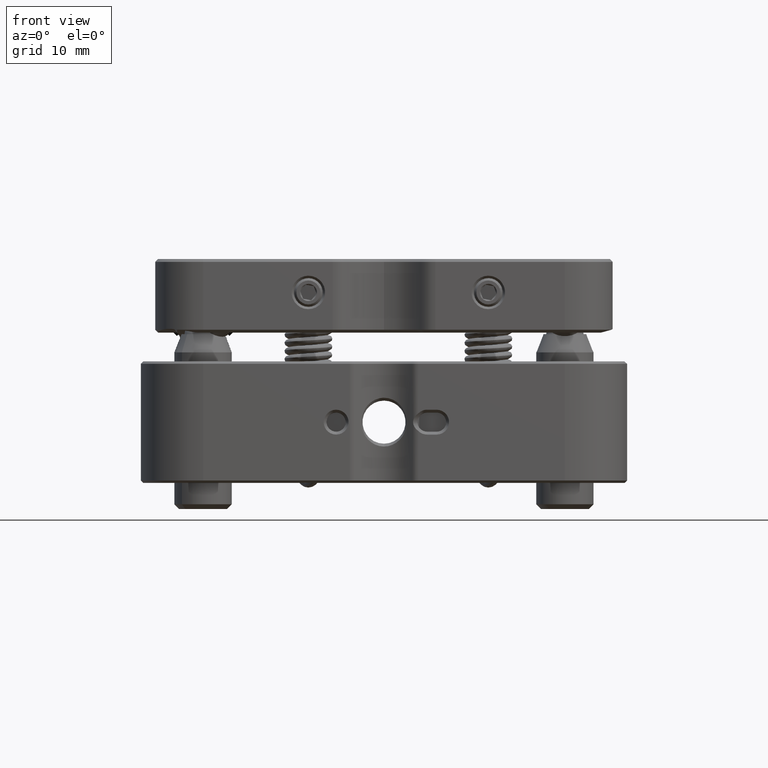
[diagram: clean part render]
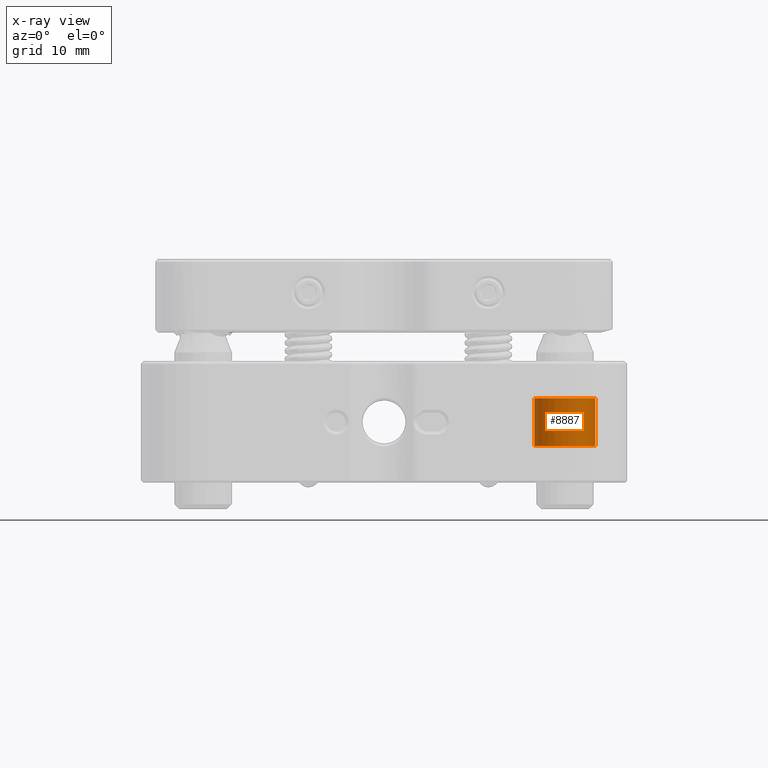
[diagram: x-ray — body ghosted, one internal face saturated and labeled with its STEP entity id]
A machine part, front view, then the same camera in x-ray: the body is ghosted and one INTERNAL B-rep face — a face not visible from any outside direction — is saturated and labeled: STEP entity #8887.
In plain terms, the highlighted cylindrical surface (edge-blend (fillet) strip) has radius 3.175 mm, axis along (0, 0, 1).
Its self-contained STEP definition (entity closure, byte-faithful):
#105 = CARTESIAN_POINT ( 'NONE',  ( 15.72500000000000675, -18.89999999999999503, 2.500000000000000000 ) ) ;
#342 = CYLINDRICAL_SURFACE ( 'NONE', #16143, 3.174999999999993605 ) ;
#917 = ORIENTED_EDGE ( 'NONE', *, *, #13376, .F. ) ;
#1828 = EDGE_CURVE ( 'NONE', #6384, #26894, #27060, .T. ) ;
#2254 = AXIS2_PLACEMENT_3D ( 'NONE', #18077, #15929, #12186 ) ;
#2907 = EDGE_LOOP ( 'NONE', ( #21445, #14847, #9367, #917 ) ) ;
#6212 = EDGE_CURVE ( 'NONE', #17968, #26894, #8171, .T. ) ;
#6384 = VERTEX_POINT ( 'NONE', #12803 ) ;
#7387 = FACE_OUTER_BOUND ( 'NONE', #2907, .T. ) ;
#8171 = LINE ( 'NONE', #16966, #23256 ) ;
#8887 = ADVANCED_FACE ( 'NONE', ( #7387 ), #342, .F. ) ;
#9367 = ORIENTED_EDGE ( 'NONE', *, *, #1828, .F. ) ;
#10649 = DIRECTION ( 'NONE',  ( 0.000000000000000000, 1.000000000000000000, 0.000000000000000000 ) ) ;
#11415 = DIRECTION ( 'NONE',  ( -0.000000000000000000, -0.000000000000000000, 1.000000000000000000 ) ) ;
#12186 = DIRECTION ( 'NONE',  ( 0.000000000000000000, 1.000000000000000000, 0.000000000000000000 ) ) ;
#12272 = CARTESIAN_POINT ( 'NONE',  ( 15.72500000000000675, -18.89999999999999503, -2.500000000000000000 ) ) ;
#12332 = AXIS2_PLACEMENT_3D ( 'NONE', #26190, #15547, #10649 ) ;
#12803 = CARTESIAN_POINT ( 'NONE',  ( 22.07499999999999218, -18.89999999999999503, 2.500000000000000000 ) ) ;
#13376 = EDGE_CURVE ( 'NONE', #21286, #6384, #26569, .T. ) ;
#13491 = DIRECTION ( 'NONE',  ( -0.000000000000000000, -0.000000000000000000, 1.000000000000000000 ) ) ;
#14847 = ORIENTED_EDGE ( 'NONE', *, *, #6212, .T. ) ;
#15547 = DIRECTION ( 'NONE',  ( -0.000000000000000000, -0.000000000000000000, -1.000000000000000000 ) ) ;
#15929 = DIRECTION ( 'NONE',  ( -0.000000000000000000, -0.000000000000000000, -1.000000000000000000 ) ) ;
#16143 = AXIS2_PLACEMENT_3D ( 'NONE', #26526, #11415, #17745 ) ;
#16374 = VECTOR ( 'NONE', #13491, 1000.000000000000000 ) ;
#16966 = CARTESIAN_POINT ( 'NONE',  ( 15.72500000000000675, -18.89999999999999503, -2.500000000000000000 ) ) ;
#17745 = DIRECTION ( 'NONE',  ( 1.000000000000000000, 0.000000000000000000, 0.000000000000000000 ) ) ;
#17968 = VERTEX_POINT ( 'NONE', #12272 ) ;
#18077 = CARTESIAN_POINT ( 'NONE',  ( 18.89999999999999858, -18.89999999999999503, 2.500000000000000000 ) ) ;
#18182 = EDGE_CURVE ( 'NONE', #21286, #17968, #23346, .T. ) ;
#21286 = VERTEX_POINT ( 'NONE', #27658 ) ;
#21445 = ORIENTED_EDGE ( 'NONE', *, *, #18182, .T. ) ;
#23256 = VECTOR ( 'NONE', #25728, 1000.000000000000000 ) ;
#23346 = CIRCLE ( 'NONE', #12332, 3.174999999999993605 ) ;
#25728 = DIRECTION ( 'NONE',  ( -0.000000000000000000, -0.000000000000000000, 1.000000000000000000 ) ) ;
#26190 = CARTESIAN_POINT ( 'NONE',  ( 18.89999999999999858, -18.89999999999999503, -2.500000000000000000 ) ) ;
#26526 = CARTESIAN_POINT ( 'NONE',  ( 18.89999999999999858, -18.89999999999999503, -2.500000000000000000 ) ) ;
#26569 = LINE ( 'NONE', #26856, #16374 ) ;
#26856 = CARTESIAN_POINT ( 'NONE',  ( 22.07499999999999218, -18.89999999999999503, -2.500000000000000000 ) ) ;
#26894 = VERTEX_POINT ( 'NONE', #105 ) ;
#27060 = CIRCLE ( 'NONE', #2254, 3.174999999999993605 ) ;
#27658 = CARTESIAN_POINT ( 'NONE',  ( 22.07499999999999218, -18.89999999999999503, -2.500000000000000000 ) ) ;